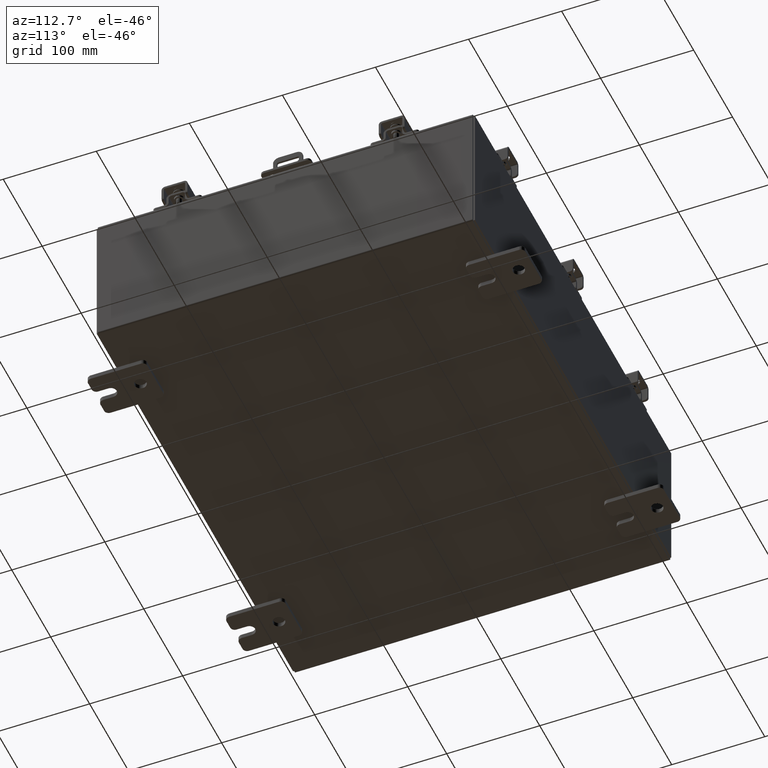
[diagram: clean part render]
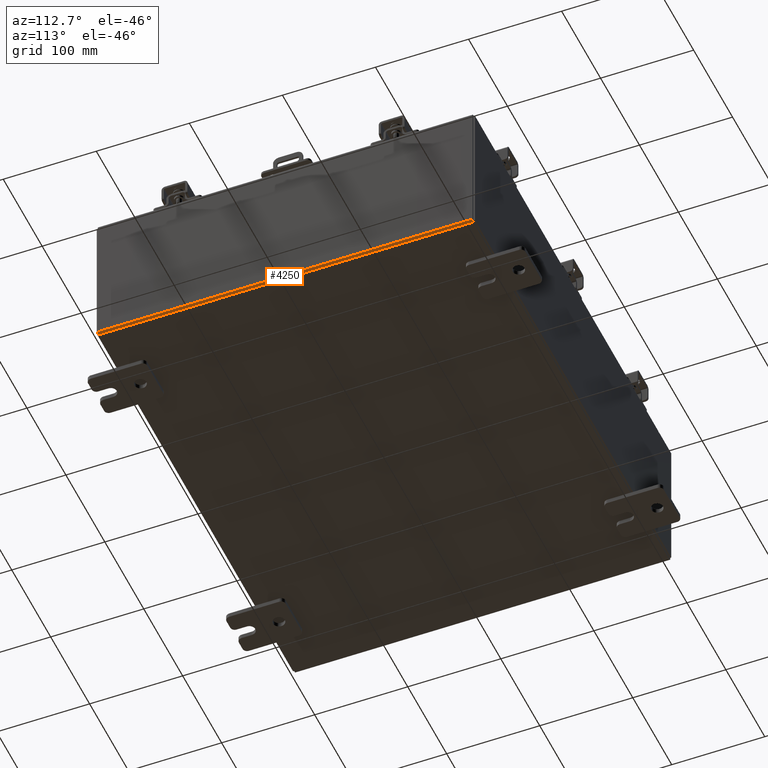
[diagram: same view with one face highlighted and labeled with its STEP entity id]
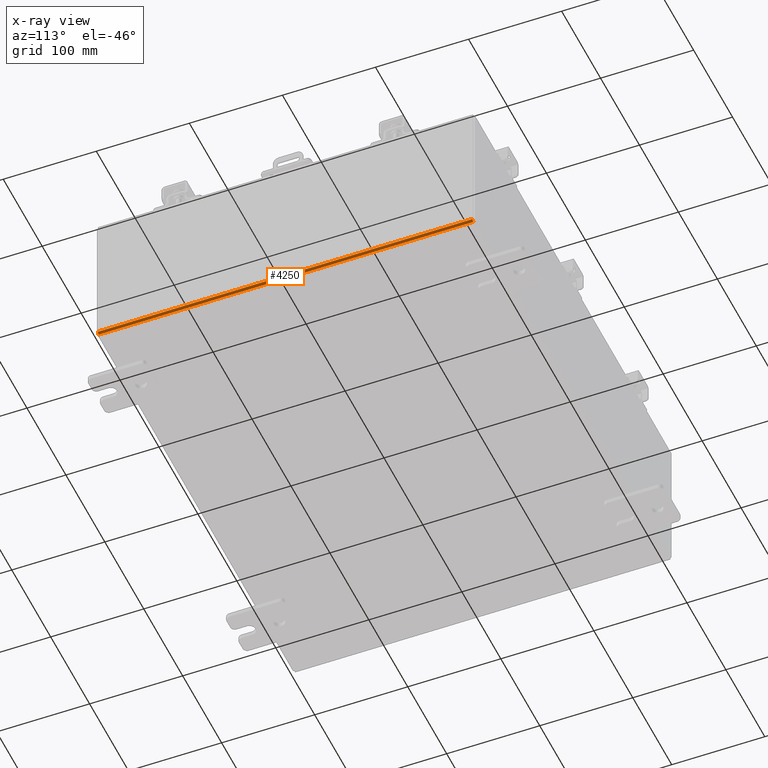
[diagram: x-ray of the same camera — body ghosted, the highlighted face saturated]
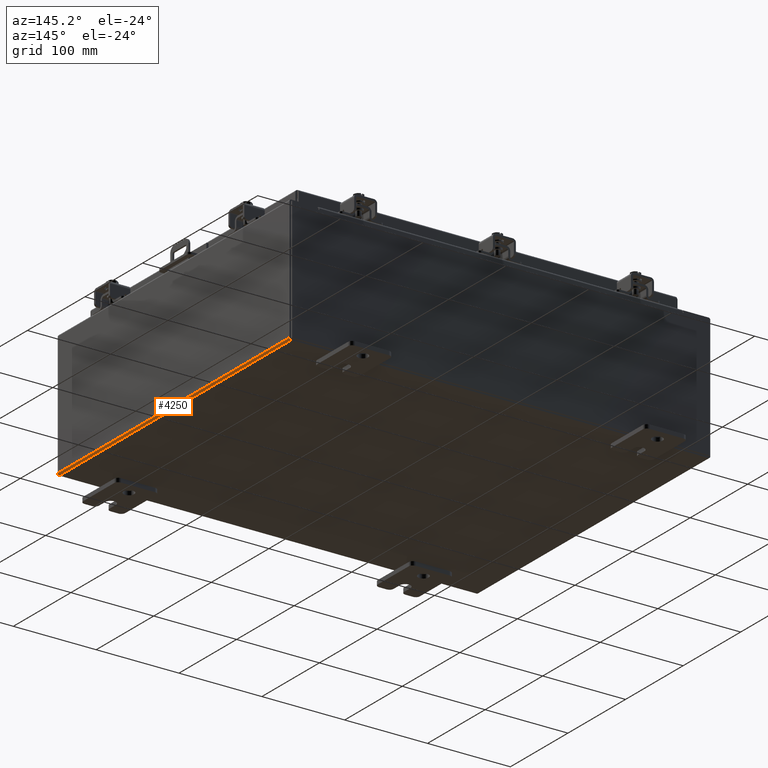
[diagram: same view with one face highlighted and labeled with its STEP entity id]
A machine part, auxiliary view. The second image highlights one B-rep face of the part: STEP entity #4250.
The next image is the same camera in x-ray: the body ghosted, the highlighted face saturated — about 0% of this face is hidden behind the body in this view.
A second angle (auxiliary view) of the same face is appended — the face is thin or edge-on in the first view.
In plain terms, the highlighted cylindrical surface (edge-blend (fillet) strip) has radius 2.2276 mm, axis along (0, 1, 0).
Its self-contained STEP definition (entity closure, byte-faithful):
#72 = CARTESIAN_POINT ( 'NONE',  ( 9.912300000000000100, -7.925300000000000000, -0.07470000000000000300 ) ) ;
#581 = ORIENTED_EDGE ( 'NONE', *, *, #1072, .T. ) ;
#932 = ORIENTED_EDGE ( 'NONE', *, *, #3512, .F. ) ;
#1002 = VECTOR ( 'NONE', #4971, 39.37007874015748100 ) ;
#1072 = EDGE_CURVE ( 'NONE', #12436, #8809, #8057, .T. ) ;
#2046 = CARTESIAN_POINT ( 'NONE',  ( 9.912300000000000100, -7.925300000000000000, 0.01300000000000015000 ) ) ;
#3489 = ORIENTED_EDGE ( 'NONE', *, *, #9306, .F. ) ;
#3512 = EDGE_CURVE ( 'NONE', #12436, #13718, #16783, .T. ) ;
#3596 = DIRECTION ( 'NONE',  ( 0.0000000000000000000, 0.0000000000000000000, 1.000000000000000000 ) ) ;
#3840 = CARTESIAN_POINT ( 'NONE',  ( 10.00000000000000000, 7.925300000000000000, 0.01299999999999986400 ) ) ;
#4250 = ADVANCED_FACE ( 'NONE', ( #10121 ), #17512, .T. ) ;
#4971 = DIRECTION ( 'NONE',  ( -0.0000000000000000000, -1.000000000000000000, -0.0000000000000000000 ) ) ;
#5806 = CARTESIAN_POINT ( 'NONE',  ( 9.912300000000000100, 7.925300000000000000, 0.01300000000000015000 ) ) ;
#6000 = CIRCLE ( 'NONE', #15001, 0.08770000000000009700 ) ;
#6288 = CARTESIAN_POINT ( 'NONE',  ( 10.00000000000000000, -7.925300000000000000, 0.01299999999999986400 ) ) ;
#6348 = DIRECTION ( 'NONE',  ( 0.0000000000000000000, 1.000000000000000000, 0.0000000000000000000 ) ) ;
#6813 = AXIS2_PLACEMENT_3D ( 'NONE', #5806, #13550, #7358 ) ;
#7358 = DIRECTION ( 'NONE',  ( 1.000000000000000000, 0.0000000000000000000, -3.309679011708404900E-015 ) ) ;
#8057 = LINE ( 'NONE', #6288, #20168 ) ;
#8809 = VERTEX_POINT ( 'NONE', #16317 ) ;
#9306 = EDGE_CURVE ( 'NONE', #13718, #12175, #9327, .T. ) ;
#9327 = LINE ( 'NONE', #14368, #1002 ) ;
#10121 = FACE_OUTER_BOUND ( 'NONE', #17965, .T. ) ;
#11770 = CARTESIAN_POINT ( 'NONE',  ( 9.912300000000000100, 7.925300000000000000, -0.07469999999999994700 ) ) ;
#12175 = VERTEX_POINT ( 'NONE', #72 ) ;
#12436 = VERTEX_POINT ( 'NONE', #3840 ) ;
#12988 = DIRECTION ( 'NONE',  ( -0.0000000000000000000, -1.000000000000000000, -0.0000000000000000000 ) ) ;
#13550 = DIRECTION ( 'NONE',  ( 0.0000000000000000000, 1.000000000000000000, 0.0000000000000000000 ) ) ;
#13718 = VERTEX_POINT ( 'NONE', #11770 ) ;
#14368 = CARTESIAN_POINT ( 'NONE',  ( 9.912300000000000100, 7.925300000000000000, -0.07469999999999994700 ) ) ;
#15001 = AXIS2_PLACEMENT_3D ( 'NONE', #2046, #12988, #3596 ) ;
#15750 = CARTESIAN_POINT ( 'NONE',  ( 9.912300000000000100, 7.925300000000000000, 0.01300000000000015000 ) ) ;
#16317 = CARTESIAN_POINT ( 'NONE',  ( 10.00000000000000000, -7.925300000000000000, 0.01299999999999985900 ) ) ;
#16732 = ORIENTED_EDGE ( 'NONE', *, *, #18281, .F. ) ;
#16783 = CIRCLE ( 'NONE', #16909, 0.08770000000000009700 ) ;
#16909 = AXIS2_PLACEMENT_3D ( 'NONE', #15750, #6348, #17350 ) ;
#17350 = DIRECTION ( 'NONE',  ( 0.0000000000000000000, 0.0000000000000000000, 1.000000000000000000 ) ) ;
#17512 = CYLINDRICAL_SURFACE ( 'NONE', #6813, 0.08770000000000026400 ) ;
#17781 = DIRECTION ( 'NONE',  ( -0.0000000000000000000, -1.000000000000000000, -0.0000000000000000000 ) ) ;
#17965 = EDGE_LOOP ( 'NONE', ( #3489, #932, #581, #16732 ) ) ;
#18281 = EDGE_CURVE ( 'NONE', #12175, #8809, #6000, .T. ) ;
#20168 = VECTOR ( 'NONE', #17781, 39.37007874015748100 ) ;